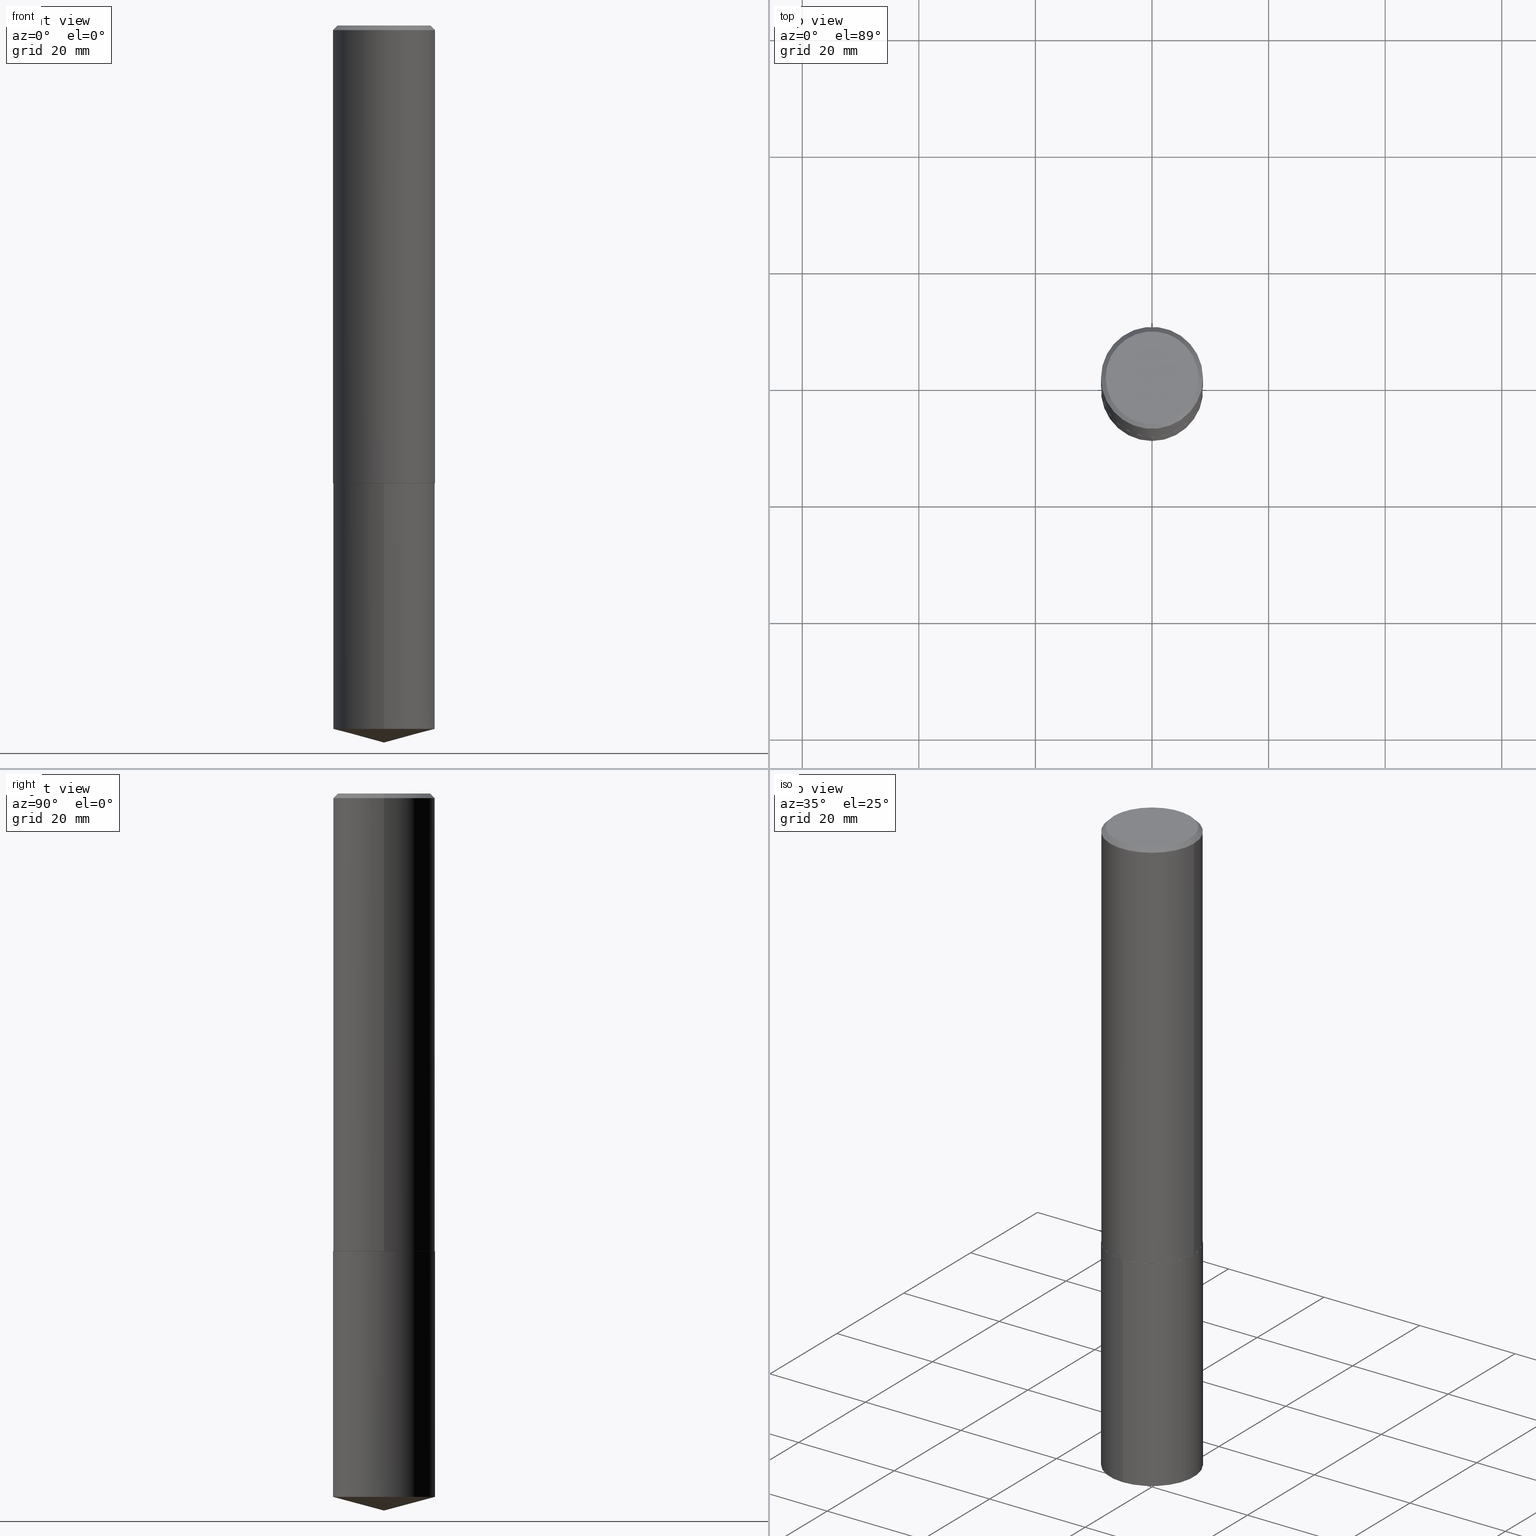
[diagram: canonical four-view strip — front | top / right | iso, engineering-drawing reading convention]
A machine part, canonical four-view strip (front | top / right | iso — engineering-drawing reading convention). The complete STEP part file that produces these views, byte-faithful:
ISO-10303-21;
HEADER;
FILE_DESCRIPTION (( 'STEP AP203' ),
    '1' );
FILE_NAME ('63041.STEP',
    '2024-04-23T08:27:34',
    ( '' ),
    ( '' ),
    'SwSTEP 2.0',
    'SolidWorks 2023',
    '' );
FILE_SCHEMA (( 'CONFIG_CONTROL_DESIGN' ));
ENDSEC;

DATA;
#1 = DIRECTION ( 'NONE',  ( -2.445468806185136597E-29, 3.491481338843145583E-15, 1.000000000000000000 ) ) ;
#2 = VERTEX_POINT ( 'NONE', #313 ) ;
#3 = DIRECTION ( 'NONE',  ( -2.445468806185136597E-29, 3.491481338843145583E-15, 1.000000000000000000 ) ) ;
#4 = VECTOR ( 'NONE', #387, 39.37007874015748143 ) ;
#5 = VECTOR ( 'NONE', #226, 39.37007874015748854 ) ;
#6 = EDGE_CURVE ( 'NONE', #140, #86, #10, .T. ) ;
#7 = DIRECTION ( 'NONE',  ( -2.445468806185136597E-29, 3.491481338843145583E-15, 1.000000000000000000 ) ) ;
#8 = CARTESIAN_POINT ( 'NONE',  ( 7.642090019328597407E-31, -1.091087918388489527E-16, -0.03125000000000018735 ) ) ;
#9 = LINE ( 'NONE', #104, #5 ) ;
#10 = LINE ( 'NONE', #146, #13 ) ;
#11 = DIRECTION ( 'NONE',  ( 0.000000000000000000, 0.000000000000000000, 1.000000000000000000 ) ) ;
#12 = AXIS2_PLACEMENT_3D ( 'NONE', #156, #97, #278 ) ;
#13 = VECTOR ( 'NONE', #76, 39.37007874015748143 ) ;
#14 = EDGE_CURVE ( 'NONE', #369, #131, #158, .T. ) ;
#15 = LINE ( 'NONE', #111, #215 ) ;
#16 = DIRECTION ( 'NONE',  ( -2.445468806185136597E-29, 3.491481338843145583E-15, 1.000000000000000000 ) ) ;
#17 = FACE_OUTER_BOUND ( 'NONE', #360, .T. ) ;
#18 = ORIENTED_EDGE ( 'NONE', *, *, #98, .T. ) ;
#19 = DIRECTION ( 'NONE',  ( -6.982962677686265922E-15, -1.000000000000000000, 3.171957031830784954E-15 ) ) ;
#20 = AXIS2_PLACEMENT_3D ( 'NONE', #93, #183, #334 ) ;
#21 = PRODUCT_DEFINITION_SHAPE ( 'NONE', 'NONE',  #112 ) ;
#22 = DIRECTION ( 'NONE',  ( -6.982962677686265922E-15, -1.000000000000000000, 3.510303681827612034E-15 ) ) ;
#23 = ORIENTED_EDGE ( 'NONE', *, *, #27, .T. ) ;
#24 = DIRECTION ( 'NONE',  ( -2.445468806185136597E-29, 3.491481338843145583E-15, 1.000000000000000000 ) ) ;
#25 = EDGE_LOOP ( 'NONE', ( #350, #324, #306 ) ) ;
#26 =( LENGTH_UNIT ( ) NAMED_UNIT ( * ) SI_UNIT ( $, .METRE. ) );
#27 = EDGE_CURVE ( 'NONE', #349, #293, #126, .T. ) ;
#28 = CIRCLE ( 'NONE', #78, 0.3440000000000004721 ) ;
#29 = MANIFOLD_SOLID_BREP ( 'Body-Move/Copy2[1]', #182 ) ;
#30 = LOCAL_TIME ( 4, 27, 34.00000000000000000, #115 ) ;
#31 = DATE_TIME_ROLE ( 'classification_date' ) ;
#32 = ADVANCED_FACE ( 'NONE', ( #308 ), #43, .F. ) ;
#33 = EDGE_LOOP ( 'NONE', ( #211, #110, #18, #232 ) ) ;
#34 = ADVANCED_FACE ( 'NONE', ( #370 ), #363, .T. ) ;
#35 = ORIENTED_EDGE ( 'NONE', *, *, #337, .T. ) ;
#36 = CARTESIAN_POINT ( 'NONE',  ( -0.3445000000000002505, -8.341206760465657787E-15, -3.090100000000000069 ) ) ;
#37 = FACE_OUTER_BOUND ( 'NONE', #33, .T. ) ;
#38 = DIRECTION ( 'NONE',  ( -6.982962677686265922E-15, -1.000000000000000000, 3.171957031830784954E-15 ) ) ;
#39 = PRODUCT_RELATED_PRODUCT_CATEGORY ( 'detail', '', ( #327 ) ) ;
#40 = DIRECTION ( 'NONE',  ( 2.438088387897960049E-29, -3.491481338843145188E-15, -1.000000000000000000 ) ) ;
#41 = CIRCLE ( 'NONE', #256, 0.3445000000000000284 ) ;
#42 = SECURITY_CLASSIFICATION ( '', '', #243 ) ;
#43 = PLANE ( 'NONE',  #161 ) ;
#44 = FACE_OUTER_BOUND ( 'NONE', #177, .T. ) ;
#45 = ORIENTED_EDGE ( 'NONE', *, *, #220, .T. ) ;
#46 = DIRECTION ( 'NONE',  ( -1.000000000000000000, 6.982962677686267499E-15, 0.000000000000000000 ) ) ;
#47 = VECTOR ( 'NONE', #151, 39.37007874015748143 ) ;
#48 = CARTESIAN_POINT ( 'NONE',  ( -1.768450389859456785E-46, 2.524878468802161695E-32, 7.231539348965118234E-18 ) ) ;
#49 = DIRECTION ( 'NONE',  ( -2.445468806185136597E-29, 3.491481338843145583E-15, 1.000000000000000000 ) ) ;
#50 = ORIENTED_EDGE ( 'NONE', *, *, #279, .T. ) ;
#51 = CARTESIAN_POINT ( 'NONE',  ( 2.447819724693660122E-15, 0.3444999999999832641, -4.750191503207480181 ) ) ;
#52 = ADVANCED_FACE ( 'NONE', ( #362 ), #248, .T. ) ;
#53 = ORIENTED_EDGE ( 'NONE', *, *, #174, .F. ) ;
#54 = APPROVAL_DATE_TIME ( #199, #295 ) ;
#55 = ORGANIZATION ( 'UNSPECIFIED', 'UNSPECIFIED', '' ) ;
#56 = EDGE_LOOP ( 'NONE', ( #231, #23, #239, #257 ) ) ;
#57 = MECHANICAL_CONTEXT ( 'NONE', #77, 'mechanical' ) ;
#58 = VERTEX_POINT ( 'NONE', #318 ) ;
#59 = CARTESIAN_POINT ( 'NONE',  ( 7.557965892395783042E-29, -1.079077222582862542E-14, -3.090600000000000236 ) ) ;
#60 = CC_DESIGN_PERSON_AND_ORGANIZATION_ASSIGNMENT ( #238, #179, ( #42 ) ) ;
#61 = CALENDAR_DATE ( 2024, 23, 4 ) ;
#62 = CIRCLE ( 'NONE', #96, 0.3445000000000000284 ) ;
#63 = PERSON_AND_ORGANIZATION_ROLE ( 'design_owner' ) ;
#64 = ORIENTED_EDGE ( 'NONE', *, *, #322, .F. ) ;
#65 = AXIS2_PLACEMENT_3D ( 'NONE', #159, #237, #379 ) ;
#66 = ADVANCED_FACE ( 'NONE', ( #245 ), #282, .T. ) ;
#67 = PERSON_AND_ORGANIZATION_ROLE ( 'creator' ) ;
#68 = ORIENTED_EDGE ( 'NONE', *, *, #6, .T. ) ;
#69 = FACE_OUTER_BOUND ( 'NONE', #198, .T. ) ;
#70 = CARTESIAN_POINT ( 'NONE',  ( -0.3445000000000000284, 2.296521850624070381E-15, -0.03125000000000018735 ) ) ;
#71 = AXIS2_PLACEMENT_3D ( 'NONE', #8, #222, #46 ) ;
#72 =( NAMED_UNIT ( * ) PLANE_ANGLE_UNIT ( ) SI_UNIT ( $, .RADIAN. ) );
#73 = ADVANCED_FACE ( 'NONE', ( #37 ), #274, .T. ) ;
#74 = VERTEX_POINT ( 'NONE', #134 ) ;
#75 = CARTESIAN_POINT ( 'NONE',  ( 7.557965892395783042E-29, -1.079077222582862542E-14, -3.090600000000000236 ) ) ;
#76 = DIRECTION ( 'NONE',  ( 0.7071067811862576935, -2.468850131079221129E-15, 0.7071067811868373409 ) ) ;
#77 = APPLICATION_CONTEXT ( 'configuration controlled 3d designs of mechanical parts and assemblies' ) ;
#78 = AXIS2_PLACEMENT_3D ( 'NONE', #75, #7, #189 ) ;
#79 = DIRECTION ( 'NONE',  ( -2.445468806185136597E-29, 3.491481338843145583E-15, 1.000000000000000000 ) ) ;
#80 = DIRECTION ( 'NONE',  ( -2.444255737030311001E-29, 3.493218522916463990E-15, 1.000000000000000000 ) ) ;
#81 = CC_DESIGN_APPROVAL ( #204, ( #42 ) ) ;
#82 = FACE_OUTER_BOUND ( 'NONE', #25, .T. ) ;
#83 = EDGE_CURVE ( 'NONE', #339, #149, #241, .T. ) ;
#84 = ORIENTED_EDGE ( 'NONE', *, *, #348, .F. ) ;
#85 = COORDINATED_UNIVERSAL_TIME_OFFSET ( 5, 0, .BEHIND. ) ;
#86 = VERTEX_POINT ( 'NONE', #287 ) ;
#87 = DIRECTION ( 'NONE',  ( 2.444255737030310721E-29, -3.493218522916464385E-15, -1.000000000000000000 ) ) ;
#88 = VECTOR ( 'NONE', #164, 39.37007874015748143 ) ;
#89 = DATE_AND_TIME ( #359, #30 ) ;
#90 = DIRECTION ( 'NONE',  ( 6.982962677686265922E-15, 1.000000000000000000, -3.493218522916464385E-15 ) ) ;
#91 = ORIENTED_EDGE ( 'NONE', *, *, #286, .F. ) ;
#92 = CARTESIAN_POINT ( 'NONE',  ( 7.556743157992690241E-29, -1.078902648515920471E-14, -3.090100000000000069 ) ) ;
#93 = CARTESIAN_POINT ( 'NONE',  ( -8.439048330986581665E-28, 1.206177465476718048E-13, 34.52757874015748030 ) ) ;
#94 = EDGE_LOOP ( 'NONE', ( #155, #382, #68, #64 ) ) ;
#95 = FACE_OUTER_BOUND ( 'NONE', #94, .T. ) ;
#96 = AXIS2_PLACEMENT_3D ( 'NONE', #150, #3, #311 ) ;
#97 = DIRECTION ( 'NONE',  ( -2.445468806185136597E-29, 3.491481338843145583E-15, 1.000000000000000000 ) ) ;
#98 = EDGE_CURVE ( 'NONE', #339, #2, #374, .T. ) ;
#99 =( GEOMETRIC_REPRESENTATION_CONTEXT ( 3 ) GLOBAL_UNCERTAINTY_ASSIGNED_CONTEXT ( ( #242 ) ) GLOBAL_UNIT_ASSIGNED_CONTEXT ( ( #125, #72, #218 ) ) REPRESENTATION_CONTEXT ( 'NONE', 'WORKASPACE' ) );
#100 = ADVANCED_FACE ( 'NONE', ( #17 ), #152, .T. ) ;
#101 = EDGE_LOOP ( 'NONE', ( #297, #385 ) ) ;
#102 = CC_DESIGN_APPROVAL ( #295, ( #112 ) ) ;
#103 = DIRECTION ( 'NONE',  ( 1.000000000000000000, -6.982962677686265922E-15, 4.876176775795935793E-29 ) ) ;
#104 = CARTESIAN_POINT ( 'NONE',  ( 1.183630840656928127E-28, -1.691591069722297597E-14, -4.842500000000000249 ) ) ;
#105 = CARTESIAN_POINT ( 'NONE',  ( 1.161443194523742317E-28, -1.658808800530777061E-14, -4.750191503207479293 ) ) ;
#106 = ADVANCED_FACE ( 'NONE', ( #82 ), #336, .T. ) ;
#107 = CARTESIAN_POINT ( 'NONE',  ( 0.3445000000000000839, -2.405630642462919876E-15, 1.679842899261700335E-29 ) ) ;
#108 = EDGE_CURVE ( 'NONE', #58, #293, #259, .T. ) ;
#109 = DIRECTION ( 'NONE',  ( -2.445468806185136597E-29, 3.491481338843145583E-15, 1.000000000000000000 ) ) ;
#110 = ORIENTED_EDGE ( 'NONE', *, *, #192, .T. ) ;
#111 = CARTESIAN_POINT ( 'NONE',  ( 1.184387238019438077E-28, -1.690517281502897922E-14, -4.842500000000000249 ) ) ;
#112 = PRODUCT_DEFINITION ( 'UNKNOWN', '', #143, #251 ) ;
#113 = COORDINATED_UNIVERSAL_TIME_OFFSET ( 5, 0, .BEHIND. ) ;
#114 = CIRCLE ( 'NONE', #375, 0.3440000000000004721 ) ;
#115 = COORDINATED_UNIVERSAL_TIME_OFFSET ( 5, 0, .BEHIND. ) ;
#116 = APPROVAL_PERSON_ORGANIZATION ( #263, #225, #389 ) ;
#117 = ORIENTED_EDGE ( 'NONE', *, *, #83, .T. ) ;
#118 = COORDINATED_UNIVERSAL_TIME_OFFSET ( 5, 0, .BEHIND. ) ;
#119 = ORIENTED_EDGE ( 'NONE', *, *, #27, .F. ) ;
#120 = DATE_AND_TIME ( #386, #358 ) ;
#121 = CARTESIAN_POINT ( 'NONE',  ( -0.3445000000000000284, -3.001247913805480378E-15, -0.03125000000000018735 ) ) ;
#122 = DIRECTION ( 'NONE',  ( -2.444255737030311001E-29, 3.493218522916463990E-15, 1.000000000000000000 ) ) ;
#123 = PERSON_AND_ORGANIZATION ( #357, #55 ) ;
#124 = EDGE_LOOP ( 'NONE', ( #333, #301 ) ) ;
#125 =( CONVERSION_BASED_UNIT ( 'INCH', #203 ) LENGTH_UNIT ( ) NAMED_UNIT ( #347 ) );
#126 = LINE ( 'NONE', #132, #275 ) ;
#127 = EDGE_LOOP ( 'NONE', ( #119, #186, #196, #345 ) ) ;
#128 = CC_DESIGN_PERSON_AND_ORGANIZATION_ASSIGNMENT ( #123, #300, ( #143 ) ) ;
#129 = CARTESIAN_POINT ( 'NONE',  ( 7.557965892395783042E-29, -1.079077222582862542E-14, -3.090600000000000236 ) ) ;
#130 = EDGE_CURVE ( 'NONE', #219, #2, #338, .T. ) ;
#131 = VERTEX_POINT ( 'NONE', #229 ) ;
#132 = CARTESIAN_POINT ( 'NONE',  ( -0.3445000000000000839, 2.447819724693545737E-15, -1.694573138592815289E-29 ) ) ;
#133 = DIRECTION ( 'NONE',  ( 1.000000000000000000, -6.982962677686268288E-15, 4.876216290940278169E-29 ) ) ;
#134 = CARTESIAN_POINT ( 'NONE',  ( 1.183630840656928127E-28, -1.691591069722297597E-14, -4.842500000000000249 ) ) ;
#135 = DIRECTION ( 'NONE',  ( -6.982962677686265922E-15, -1.000000000000000000, 3.171957031830784954E-15 ) ) ;
#136 = CARTESIAN_POINT ( 'NONE',  ( 7.642090019328597407E-31, -1.091087918388489527E-16, -0.03125000000000018735 ) ) ;
#137 = EDGE_CURVE ( 'NONE', #165, #140, #114, .T. ) ;
#138 = CARTESIAN_POINT ( 'NONE',  ( -2.405630642462801547E-15, -0.3445000000000165152, -4.750191503207478405 ) ) ;
#139 = AXIS2_PLACEMENT_3D ( 'NONE', #148, #328, #298 ) ;
#140 = VERTEX_POINT ( 'NONE', #281 ) ;
#141 = APPROVAL_STATUS ( 'not_yet_approved' ) ;
#142 = CIRCLE ( 'NONE', #193, 0.3445000000000002505 ) ;
#143 = PRODUCT_DEFINITION_FORMATION_WITH_SPECIFIED_SOURCE ( 'ANY', '', #327, .NOT_KNOWN. ) ;
#144 = CC_DESIGN_DATE_AND_TIME_ASSIGNMENT ( #305, #31, ( #42 ) ) ;
#145 = PERSON_AND_ORGANIZATION ( #357, #55 ) ;
#146 = CARTESIAN_POINT ( 'NONE',  ( 0.3445000000000002505, -1.319465712762212498E-14, -3.090100000000000069 ) ) ;
#147 = APPROVAL_DATE_TIME ( #120, #204 ) ;
#148 = CARTESIAN_POINT ( 'NONE',  ( 0.000000000000000000, 0.000000000000000000, 0.000000000000000000 ) ) ;
#149 = VERTEX_POINT ( 'NONE', #51 ) ;
#150 = CARTESIAN_POINT ( 'NONE',  ( 7.642090019328597407E-31, -1.091087918388489527E-16, -0.03125000000000018735 ) ) ;
#151 = DIRECTION ( 'NONE',  ( -2.444255737030311001E-29, 3.493218522916464385E-15, 1.000000000000000000 ) ) ;
#152 = CONICAL_SURFACE ( 'NONE', #290, 0.3445000000000002505, 0.7853981633970383847 ) ;
#153 = DIRECTION ( 'NONE',  ( -1.000000000000000000, 6.982962677686265922E-15, -4.876176775795935793E-29 ) ) ;
#154 = CARTESIAN_POINT ( 'NONE',  ( 7.557965892395783042E-29, -1.079077222582862542E-14, -3.090600000000000236 ) ) ;
#155 = ORIENTED_EDGE ( 'NONE', *, *, #220, .F. ) ;
#156 = CARTESIAN_POINT ( 'NONE',  ( 0.000000000000000000, 0.000000000000000000, 0.000000000000000000 ) ) ;
#157 = DIRECTION ( 'NONE',  ( 6.863315791527695837E-15, 0.9659258262890696445, 0.2588190451025154104 ) ) ;
#158 = LINE ( 'NONE', #280, #4 ) ;
#159 = CARTESIAN_POINT ( 'NONE',  ( 7.556743157992690241E-29, -1.078902648515920471E-14, -3.090100000000000069 ) ) ;
#160 = CARTESIAN_POINT ( 'NONE',  ( 4.130204327835568883E-29, -1.569952188235116168E-14, -3.090600000000000236 ) ) ;
#161 = AXIS2_PLACEMENT_3D ( 'NONE', #247, #40, #153 ) ;
#162 = AXIS2_PLACEMENT_3D ( 'NONE', #289, #340, #19 ) ;
#163 = ADVANCED_FACE ( 'NONE', ( #44 ), #371, .F. ) ;
#164 = DIRECTION ( 'NONE',  ( -2.445468806185136877E-29, 3.491481338843145188E-15, 1.000000000000000000 ) ) ;
#165 = VERTEX_POINT ( 'NONE', #224 ) ;
#166 = DIRECTION ( 'NONE',  ( -2.438088387897960049E-29, 3.491481338843145188E-15, 1.000000000000000000 ) ) ;
#167 = AXIS2_PLACEMENT_3D ( 'NONE', #154, #180, #38 ) ;
#168 = APPLICATION_PROTOCOL_DEFINITION ( 'international standard', 'config_control_design', 1994, #184 ) ;
#169 = DATE_TIME_ROLE ( 'creation_date' ) ;
#170 = ORIENTED_EDGE ( 'NONE', *, *, #285, .T. ) ;
#171 = FACE_OUTER_BOUND ( 'NONE', #56, .T. ) ;
#172 = ORIENTED_EDGE ( 'NONE', *, *, #6, .F. ) ;
#173 = AXIS2_PLACEMENT_3D ( 'NONE', #270, #122, #22 ) ;
#174 = EDGE_CURVE ( 'NONE', #74, #149, #15, .T. ) ;
#175 = PERSON_AND_ORGANIZATION ( #357, #55 ) ;
#176 = MANIFOLD_SOLID_BREP ( 'Body-Move/Copy2[2]', #213 ) ;
#177 = EDGE_LOOP ( 'NONE', ( #288, #335 ) ) ;
#178 = FACE_OUTER_BOUND ( 'NONE', #390, .T. ) ;
#179 = PERSON_AND_ORGANIZATION_ROLE ( 'classification_officer' ) ;
#180 = DIRECTION ( 'NONE',  ( -2.444255737030311001E-29, 3.493218522916463990E-15, 1.000000000000000000 ) ) ;
#181 = DIRECTION ( 'NONE',  ( 1.000000000000000000, -6.982962677686264344E-15, 0.000000000000000000 ) ) ;
#182 = CLOSED_SHELL ( 'NONE', ( #253, #106, #66, #73, #361 ) ) ;
#183 = DIRECTION ( 'NONE',  ( -2.444255737030311001E-29, 3.493218522916463990E-15, 1.000000000000000000 ) ) ;
#184 = APPLICATION_CONTEXT ( 'configuration controlled 3d designs of mechanical parts and assemblies' ) ;
#185 = DIRECTION ( 'NONE',  ( 1.000000000000000000, -6.982962677686264344E-15, 0.000000000000000000 ) ) ;
#186 = ORIENTED_EDGE ( 'NONE', *, *, #322, .T. ) ;
#187 = VECTOR ( 'NONE', #332, 39.37007874015748143 ) ;
#188 = AXIS2_PLACEMENT_3D ( 'NONE', #246, #11, #197 ) ;
#189 = DIRECTION ( 'NONE',  ( 1.000000000000000000, -6.982962677686267499E-15, 0.000000000000000000 ) ) ;
#190 = DIRECTION ( 'NONE',  ( 1.000000000000000000, -6.982962677686267499E-15, 0.000000000000000000 ) ) ;
#191 = EDGE_LOOP ( 'NONE', ( #53, #267, #252 ) ) ;
#192 = EDGE_CURVE ( 'NONE', #149, #339, #344, .T. ) ;
#193 = AXIS2_PLACEMENT_3D ( 'NONE', #272, #1, #181 ) ;
#194 = DIRECTION ( 'NONE',  ( -2.444255737030311001E-29, 3.493218522916463990E-15, 1.000000000000000000 ) ) ;
#195 = EDGE_CURVE ( 'NONE', #74, #339, #9, .T. ) ;
#196 = ORIENTED_EDGE ( 'NONE', *, *, #210, .T. ) ;
#197 = DIRECTION ( 'NONE',  ( 1.000000000000000000, 0.000000000000000000, 0.000000000000000000 ) ) ;
#198 = EDGE_LOOP ( 'NONE', ( #117, #50, #91, #378 ) ) ;
#199 = DATE_AND_TIME ( #61, #283 ) ;
#200 = ORIENTED_EDGE ( 'NONE', *, *, #201, .T. ) ;
#201 = EDGE_CURVE ( 'NONE', #131, #293, #41, .T. ) ;
#202 = FACE_OUTER_BOUND ( 'NONE', #124, .T. ) ;
#203 = LENGTH_MEASURE_WITH_UNIT ( LENGTH_MEASURE( 0.02539999999999999897 ), #26 );
#204 = APPROVAL ( #141, 'UNSPECIFIED' ) ;
#205 = CALENDAR_DATE ( 2024, 23, 4 ) ;
#206 = AXIS2_PLACEMENT_3D ( 'NONE', #160, #166, #103 ) ;
#207 = AXIS2_PLACEMENT_3D ( 'NONE', #48, #79, #133 ) ;
#208 = APPROVAL_STATUS ( 'not_yet_approved' ) ;
#209 = DIRECTION ( 'NONE',  ( 2.445468806185136597E-29, -3.491481338843145583E-15, -1.000000000000000000 ) ) ;
#210 = EDGE_CURVE ( 'NONE', #86, #131, #373, .T. ) ;
#211 = ORIENTED_EDGE ( 'NONE', *, *, #279, .F. ) ;
#212 = LINE ( 'NONE', #365, #47 ) ;
#213 = CLOSED_SHELL ( 'NONE', ( #52, #383, #100, #163, #269, #34, #368, #32 ) ) ;
#214 = DIRECTION ( 'NONE',  ( -2.445468806185136597E-29, 3.491481338843145583E-15, 1.000000000000000000 ) ) ;
#215 = VECTOR ( 'NONE', #157, 39.37007874015748854 ) ;
#216 = CARTESIAN_POINT ( 'NONE',  ( 7.557965892395783042E-29, -1.079077222582862542E-14, -3.090600000000000236 ) ) ;
#217 = EDGE_CURVE ( 'NONE', #58, #369, #312, .T. ) ;
#218 =( NAMED_UNIT ( * ) SI_UNIT ( $, .STERADIAN. ) SOLID_ANGLE_UNIT ( ) );
#219 = VERTEX_POINT ( 'NONE', #234 ) ;
#220 = EDGE_CURVE ( 'NONE', #165, #349, #299, .T. ) ;
#221 = VECTOR ( 'NONE', #320, 39.37007874015748143 ) ;
#222 = DIRECTION ( 'NONE',  ( 2.445468806185136597E-29, -3.491481338843145583E-15, -1.000000000000000000 ) ) ;
#223 = DIRECTION ( 'NONE',  ( -2.445468806185136877E-29, 3.491481338843145188E-15, 1.000000000000000000 ) ) ;
#224 = CARTESIAN_POINT ( 'NONE',  ( -0.3440000000000004721, -8.343855987639768199E-15, -3.090600000000000236 ) ) ;
#225 = APPROVAL ( #329, 'UNSPECIFIED' ) ;
#226 = DIRECTION ( 'NONE',  ( -6.745023994389841499E-15, -0.9659258262890678681, 0.2588190451025221828 ) ) ;
#227 = CARTESIAN_POINT ( 'NONE',  ( -2.405630642462842567E-15, -0.3445000000000107421, -3.090599999999998904 ) ) ;
#228 = AXIS2_PLACEMENT_3D ( 'NONE', #233, #24, #261 ) ;
#229 = CARTESIAN_POINT ( 'NONE',  ( 0.3445000000000000284, -2.514739434301768188E-15, -0.03125000000000018735 ) ) ;
#230 = DIRECTION ( 'NONE',  ( 1.000000000000000000, -6.982962677686264344E-15, 0.000000000000000000 ) ) ;
#231 = ORIENTED_EDGE ( 'NONE', *, *, #354, .T. ) ;
#232 = ORIENTED_EDGE ( 'NONE', *, *, #130, .F. ) ;
#233 = CARTESIAN_POINT ( 'NONE',  ( -1.768450389859456785E-46, 2.524878468802161695E-32, 7.231539348965118234E-18 ) ) ;
#234 = CARTESIAN_POINT ( 'NONE',  ( 2.447819724693660122E-15, 0.3444999999999890927, -3.090600000000001124 ) ) ;
#235 = CIRCLE ( 'NONE', #65, 0.3445000000000002505 ) ;
#236 = PERSON_AND_ORGANIZATION ( #357, #55 ) ;
#237 = DIRECTION ( 'NONE',  ( -2.445468806185136597E-29, 3.491481338843145583E-15, 1.000000000000000000 ) ) ;
#238 = PERSON_AND_ORGANIZATION ( #357, #55 ) ;
#239 = ORIENTED_EDGE ( 'NONE', *, *, #201, .F. ) ;
#240 = DATE_AND_TIME ( #352, #372 ) ;
#241 = CIRCLE ( 'NONE', #302, 0.3444999999999999729 ) ;
#242 = UNCERTAINTY_MEASURE_WITH_UNIT (LENGTH_MEASURE( 1.000000000000000082E-05 ), #125, 'distance_accuracy_value', 'NONE');
#243 = SECURITY_CLASSIFICATION_LEVEL ( 'unclassified' ) ;
#244 = EDGE_LOOP ( 'NONE', ( #84, #264, #200, #317 ) ) ;
#245 = FACE_OUTER_BOUND ( 'NONE', #191, .T. ) ;
#246 = CARTESIAN_POINT ( 'NONE',  ( 0.000000000000000000, 0.000000000000000000, 0.000000000000000000 ) ) ;
#247 = CARTESIAN_POINT ( 'NONE',  ( -8.842251949297283926E-47, 1.262439234401080848E-32, 3.615769674482559117E-18 ) ) ;
#248 = CONICAL_SURFACE ( 'NONE', #71, 0.3445000000000000284, 0.7853981633974458365 ) ;
#249 = DIRECTION ( 'NONE',  ( -2.444255737030311001E-29, 3.493218522916463990E-15, 1.000000000000000000 ) ) ;
#250 = APPROVAL_PERSON_ORGANIZATION ( #175, #295, #292 ) ;
#251 = DESIGN_CONTEXT ( 'detailed design', #184, 'design' ) ;
#252 = ORIENTED_EDGE ( 'NONE', *, *, #192, .F. ) ;
#253 = ADVANCED_FACE ( 'NONE', ( #69 ), #367, .T. ) ;
#254 = DIRECTION ( 'NONE',  ( -0.7071067811865457964, 2.468850131082238917E-15, -0.7071067811865492381 ) ) ;
#255 = DIRECTION ( 'NONE',  ( 1.000000000000000000, -6.982962677686267499E-15, 0.000000000000000000 ) ) ;
#256 = AXIS2_PLACEMENT_3D ( 'NONE', #136, #49, #255 ) ;
#257 = ORIENTED_EDGE ( 'NONE', *, *, #210, .F. ) ;
#258 = CARTESIAN_POINT ( 'NONE',  ( 7.557965892395783042E-29, -1.079077222582862542E-14, -3.090600000000000236 ) ) ;
#259 = LINE ( 'NONE', #70, #330 ) ;
#260 = ORIENTED_EDGE ( 'NONE', *, *, #354, .F. ) ;
#261 = DIRECTION ( 'NONE',  ( 1.000000000000000000, -6.982962677686268288E-15, 4.876216290940278169E-29 ) ) ;
#262 = CC_DESIGN_DATE_AND_TIME_ASSIGNMENT ( #240, #169, ( #112 ) ) ;
#263 = PERSON_AND_ORGANIZATION ( #357, #55 ) ;
#264 = ORIENTED_EDGE ( 'NONE', *, *, #14, .T. ) ;
#265 = CONICAL_SURFACE ( 'NONE', #355, 0.3445000000000002505, 0.7853981633970383847 ) ;
#266 = DIRECTION ( 'NONE',  ( -1.000000000000000000, 6.982962677686267499E-15, 0.000000000000000000 ) ) ;
#267 = ORIENTED_EDGE ( 'NONE', *, *, #195, .T. ) ;
#268 = APPROVAL_ROLE ( '' ) ;
#269 = ADVANCED_FACE ( 'NONE', ( #95 ), #265, .T. ) ;
#270 = CARTESIAN_POINT ( 'NONE',  ( -8.439048330986581665E-28, 1.206177465476718048E-13, 34.52757874015748030 ) ) ;
#271 = COORDINATED_UNIVERSAL_TIME_OFFSET ( 5, 0, .BEHIND. ) ;
#272 = CARTESIAN_POINT ( 'NONE',  ( 7.556743157992690241E-29, -1.078902648515920471E-14, -3.090100000000000069 ) ) ;
#273 = CC_DESIGN_PERSON_AND_ORGANIZATION_ASSIGNMENT ( #236, #323, ( #143 ) ) ;
#274 = CYLINDRICAL_SURFACE ( 'NONE', #380, 0.3444999999999999729 ) ;
#275 = VECTOR ( 'NONE', #223, 39.37007874015748143 ) ;
#276 = AXIS2_PLACEMENT_3D ( 'NONE', #216, #309, #277 ) ;
#277 = DIRECTION ( 'NONE',  ( -6.982962677686265922E-15, -1.000000000000000000, 3.171957031830784954E-15 ) ) ;
#278 = DIRECTION ( 'NONE',  ( 1.000000000000000000, -6.982962677686268288E-15, 4.876176775795935793E-29 ) ) ;
#279 = EDGE_CURVE ( 'NONE', #149, #219, #212, .T. ) ;
#280 = CARTESIAN_POINT ( 'NONE',  ( 0.3445000000000000284, -2.472550352071141538E-15, -0.03125000000000018735 ) ) ;
#281 = CARTESIAN_POINT ( 'NONE',  ( 0.3440000000000004721, -1.319291138695270426E-14, -3.090600000000000236 ) ) ;
#282 = CONICAL_SURFACE ( 'NONE', #20, 146.9311341562562063, 1.308996938995749204 ) ;
#283 = LOCAL_TIME ( 4, 27, 34.00000000000000000, #271 ) ;
#284 = DIRECTION ( 'NONE',  ( -6.982962677686265922E-15, -1.000000000000000000, 3.171957031830784954E-15 ) ) ;
#285 = EDGE_CURVE ( 'NONE', #293, #131, #62, .T. ) ;
#286 = EDGE_CURVE ( 'NONE', #2, #219, #319, .T. ) ;
#287 = CARTESIAN_POINT ( 'NONE',  ( 0.3445000000000002505, -1.319465712762212498E-14, -3.090100000000000069 ) ) ;
#288 = ORIENTED_EDGE ( 'NONE', *, *, #337, .F. ) ;
#289 = CARTESIAN_POINT ( 'NONE',  ( 1.161443194523742317E-28, -1.658808800530777061E-14, -4.750191503207479293 ) ) ;
#290 = AXIS2_PLACEMENT_3D ( 'NONE', #376, #109, #230 ) ;
#291 = AXIS2_PLACEMENT_3D ( 'NONE', #59, #87, #90 ) ;
#292 = APPROVAL_ROLE ( '' ) ;
#293 = VERTEX_POINT ( 'NONE', #121 ) ;
#294 = CARTESIAN_POINT ( 'NONE',  ( 7.642090019328597407E-31, -1.091087918388489527E-16, -0.03125000000000018735 ) ) ;
#295 = APPROVAL ( #208, 'UNSPECIFIED' ) ;
#296 = PERSON_AND_ORGANIZATION ( #357, #55 ) ;
#297 = ORIENTED_EDGE ( 'NONE', *, *, #217, .T. ) ;
#298 = DIRECTION ( 'NONE',  ( 1.000000000000000000, -6.982962677686268288E-15, 4.876176775795935793E-29 ) ) ;
#299 = LINE ( 'NONE', #36, #187 ) ;
#300 = PERSON_AND_ORGANIZATION_ROLE ( 'creator' ) ;
#301 = ORIENTED_EDGE ( 'NONE', *, *, #130, .T. ) ;
#302 = AXIS2_PLACEMENT_3D ( 'NONE', #105, #80, #341 ) ;
#303 = CYLINDRICAL_SURFACE ( 'NONE', #139, 0.3445000000000000839 ) ;
#304 = CC_DESIGN_SECURITY_CLASSIFICATION ( #42, ( #143 ) ) ;
#305 = DATE_AND_TIME ( #205, #351 ) ;
#306 = ORIENTED_EDGE ( 'NONE', *, *, #83, .F. ) ;
#307 = SHAPE_DEFINITION_REPRESENTATION ( #21, #377 ) ;
#308 = FACE_OUTER_BOUND ( 'NONE', #101, .T. ) ;
#309 = DIRECTION ( 'NONE',  ( -2.444255737030311001E-29, 3.493218522916463990E-15, 1.000000000000000000 ) ) ;
#310 = ORIENTED_EDGE ( 'NONE', *, *, #14, .F. ) ;
#311 = DIRECTION ( 'NONE',  ( 1.000000000000000000, -6.982962677686267499E-15, 0.000000000000000000 ) ) ;
#312 = CIRCLE ( 'NONE', #228, 0.3132499999999999729 ) ;
#313 = CARTESIAN_POINT ( 'NONE',  ( -2.405630642462842567E-15, -0.3445000000000107421, -3.090599999999998904 ) ) ;
#314 = CC_DESIGN_PERSON_AND_ORGANIZATION_ASSIGNMENT ( #384, #63, ( #327 ) ) ;
#315 = AXIS2_PLACEMENT_3D ( 'NONE', #294, #209, #266 ) ;
#316 = CARTESIAN_POINT ( 'NONE',  ( -0.3445000000000002505, -8.341206760465657787E-15, -3.090100000000000069 ) ) ;
#317 = ORIENTED_EDGE ( 'NONE', *, *, #108, .F. ) ;
#318 = CARTESIAN_POINT ( 'NONE',  ( -0.3132499999999999729, 2.241967454704647014E-15, 7.231539348949630676E-18 ) ) ;
#319 = CIRCLE ( 'NONE', #276, 0.3444999999999999729 ) ;
#320 = DIRECTION ( 'NONE',  ( -2.444255737030311001E-29, 3.493218522916464385E-15, 1.000000000000000000 ) ) ;
#321 = ORIENTED_EDGE ( 'NONE', *, *, #108, .T. ) ;
#322 = EDGE_CURVE ( 'NONE', #349, #86, #142, .T. ) ;
#323 = PERSON_AND_ORGANIZATION_ROLE ( 'design_supplier' ) ;
#324 = ORIENTED_EDGE ( 'NONE', *, *, #174, .T. ) ;
#325 = APPROVAL_PERSON_ORGANIZATION ( #145, #204, #268 ) ;
#326 = CARTESIAN_POINT ( 'NONE',  ( 0.3132499999999999729, -2.310800674936537201E-15, 7.231539348980846149E-18 ) ) ;
#327 = PRODUCT ( '63041', '63041', '', ( #57 ) ) ;
#328 = DIRECTION ( 'NONE',  ( -2.445468806185136597E-29, 3.491481338843145583E-15, 1.000000000000000000 ) ) ;
#329 = APPROVAL_STATUS ( 'not_yet_approved' ) ;
#330 = VECTOR ( 'NONE', #254, 39.37007874015748143 ) ;
#331 = CC_DESIGN_APPROVAL ( #225, ( #143 ) ) ;
#332 = DIRECTION ( 'NONE',  ( -0.7071067811862576935, 7.493145998869306553E-15, 0.7071067811868373409 ) ) ;
#333 = ORIENTED_EDGE ( 'NONE', *, *, #286, .T. ) ;
#334 = DIRECTION ( 'NONE',  ( -6.982962677686265922E-15, -1.000000000000000000, 3.510303681827612034E-15 ) ) ;
#335 = ORIENTED_EDGE ( 'NONE', *, *, #137, .F. ) ;
#336 = CONICAL_SURFACE ( 'NONE', #173, 146.9311341562562063, 1.308996938995749204 ) ;
#337 = EDGE_CURVE ( 'NONE', #140, #165, #28, .T. ) ;
#338 = CIRCLE ( 'NONE', #364, 0.3444999999999999729 ) ;
#339 = VERTEX_POINT ( 'NONE', #138 ) ;
#340 = DIRECTION ( 'NONE',  ( -2.444255737030311001E-29, 3.493218522916463990E-15, 1.000000000000000000 ) ) ;
#341 = DIRECTION ( 'NONE',  ( -6.982962677686265922E-15, -1.000000000000000000, 3.171957031830784954E-15 ) ) ;
#342 = CARTESIAN_POINT ( 'NONE',  ( 7.557965892395783042E-29, -1.079077222582862542E-14, -3.090600000000000236 ) ) ;
#343 = CC_DESIGN_PERSON_AND_ORGANIZATION_ASSIGNMENT ( #296, #67, ( #112 ) ) ;
#344 = CIRCLE ( 'NONE', #162, 0.3444999999999999729 ) ;
#345 = ORIENTED_EDGE ( 'NONE', *, *, #285, .F. ) ;
#346 = CIRCLE ( 'NONE', #207, 0.3132499999999999729 ) ;
#347 = DIMENSIONAL_EXPONENTS ( 1.000000000000000000, 0.000000000000000000, 0.000000000000000000, 0.000000000000000000, 0.000000000000000000, 0.000000000000000000, 0.000000000000000000 ) ;
#348 = EDGE_CURVE ( 'NONE', #369, #58, #346, .T. ) ;
#349 = VERTEX_POINT ( 'NONE', #316 ) ;
#350 = ORIENTED_EDGE ( 'NONE', *, *, #195, .F. ) ;
#351 = LOCAL_TIME ( 4, 27, 34.00000000000000000, #85 ) ;
#352 = CALENDAR_DATE ( 2024, 23, 4 ) ;
#353 = ORIENTED_EDGE ( 'NONE', *, *, #217, .F. ) ;
#354 = EDGE_CURVE ( 'NONE', #86, #349, #235, .T. ) ;
#355 = AXIS2_PLACEMENT_3D ( 'NONE', #92, #214, #185 ) ;
#356 = PLANE ( 'NONE',  #291 ) ;
#357 = PERSON ( 'UNSPECIFIED', 'UNSPECIFIED', 'UNSPECIFIED', ('UNSPECIFIED'), ('UNSPECIFIED'), ('UNSPECIFIED') ) ;
#358 = LOCAL_TIME ( 4, 27, 34.00000000000000000, #113 ) ;
#359 = CALENDAR_DATE ( 2024, 23, 4 ) ;
#360 = EDGE_LOOP ( 'NONE', ( #35, #45, #260, #172 ) ) ;
#361 = ADVANCED_FACE ( 'NONE', ( #202 ), #356, .F. ) ;
#362 = FACE_OUTER_BOUND ( 'NONE', #244, .T. ) ;
#363 = CYLINDRICAL_SURFACE ( 'NONE', #12, 0.3445000000000000839 ) ;
#364 = AXIS2_PLACEMENT_3D ( 'NONE', #342, #194, #284 ) ;
#365 = CARTESIAN_POINT ( 'NONE',  ( 2.447819724693620284E-15, 0.3444999999999892037, -3.090600000000001124 ) ) ;
#366 = CONICAL_SURFACE ( 'NONE', #315, 0.3445000000000000284, 0.7853981633974458365 ) ;
#367 = CYLINDRICAL_SURFACE ( 'NONE', #167, 0.3444999999999999729 ) ;
#368 = ADVANCED_FACE ( 'NONE', ( #178 ), #366, .T. ) ;
#369 = VERTEX_POINT ( 'NONE', #326 ) ;
#370 = FACE_OUTER_BOUND ( 'NONE', #127, .T. ) ;
#371 = PLANE ( 'NONE',  #206 ) ;
#372 = LOCAL_TIME ( 4, 27, 34.00000000000000000, #118 ) ;
#373 = LINE ( 'NONE', #107, #88 ) ;
#374 = LINE ( 'NONE', #227, #221 ) ;
#375 = AXIS2_PLACEMENT_3D ( 'NONE', #258, #16, #190 ) ;
#376 = CARTESIAN_POINT ( 'NONE',  ( 7.556743157992690241E-29, -1.078902648515920471E-14, -3.090100000000000069 ) ) ;
#377 = ADVANCED_BREP_SHAPE_REPRESENTATION ( '63041', ( #29, #176, #188 ), #99 ) ;
#378 = ORIENTED_EDGE ( 'NONE', *, *, #98, .F. ) ;
#379 = DIRECTION ( 'NONE',  ( 1.000000000000000000, -6.982962677686264344E-15, 0.000000000000000000 ) ) ;
#380 = AXIS2_PLACEMENT_3D ( 'NONE', #129, #249, #135 ) ;
#381 = APPROVAL_DATE_TIME ( #89, #225 ) ;
#382 = ORIENTED_EDGE ( 'NONE', *, *, #137, .T. ) ;
#383 = ADVANCED_FACE ( 'NONE', ( #171 ), #303, .T. ) ;
#384 = PERSON_AND_ORGANIZATION ( #357, #55 ) ;
#385 = ORIENTED_EDGE ( 'NONE', *, *, #348, .T. ) ;
#386 = CALENDAR_DATE ( 2024, 23, 4 ) ;
#387 = DIRECTION ( 'NONE',  ( 0.7071067811865457964, -7.319954787623249734E-15, -0.7071067811865492381 ) ) ;
#388 = APPLICATION_PROTOCOL_DEFINITION ( 'international standard', 'config_control_design', 1994, #77 ) ;
#389 = APPROVAL_ROLE ( '' ) ;
#390 = EDGE_LOOP ( 'NONE', ( #310, #353, #321, #170 ) ) ;
ENDSEC;
END-ISO-10303-21;
